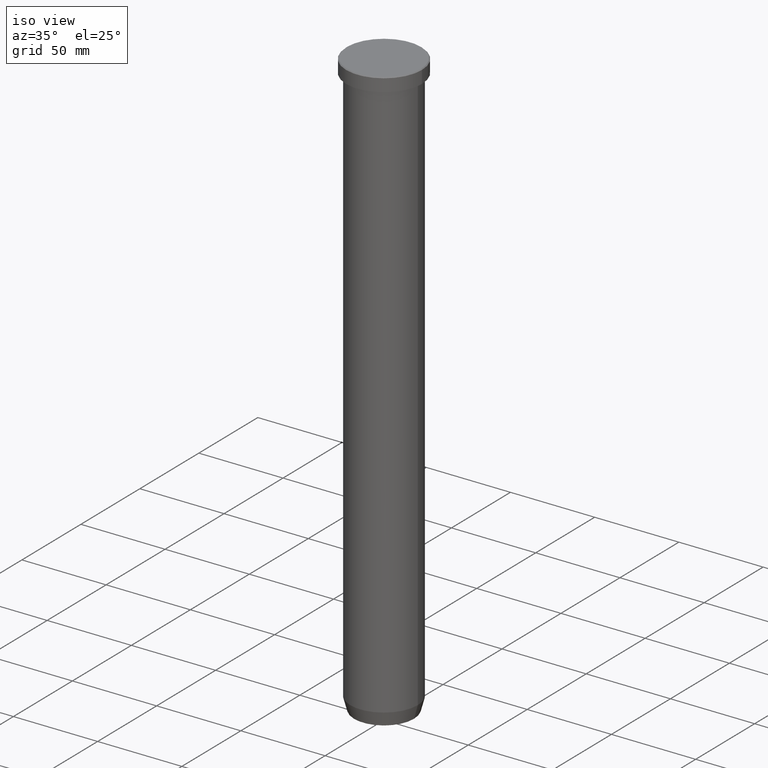
[diagram: clean part render]
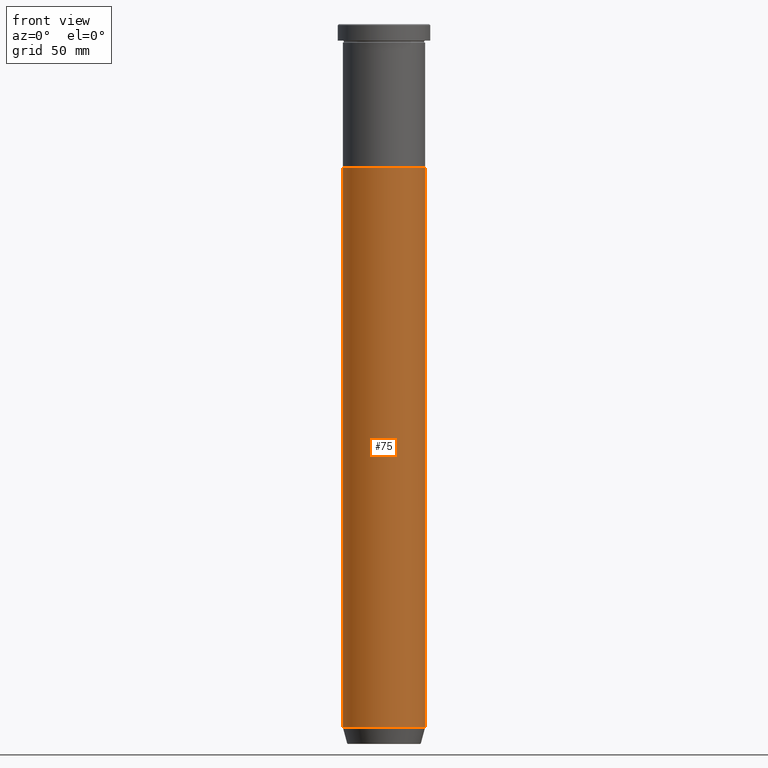
[diagram: tour spotlight — one face highlighted and labeled with its STEP entity id]
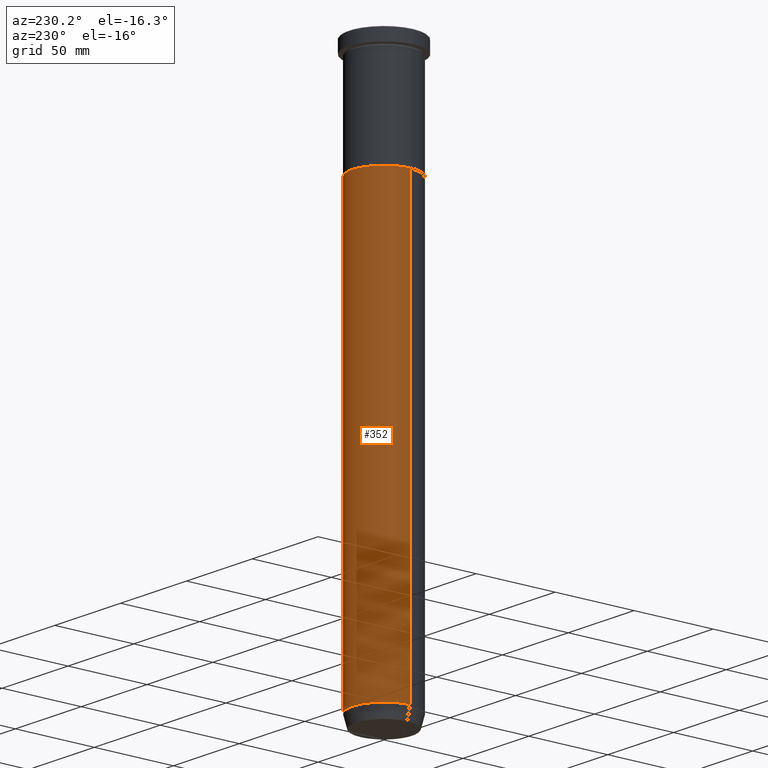
[diagram: tour spotlight — one face highlighted and labeled with its STEP entity id]
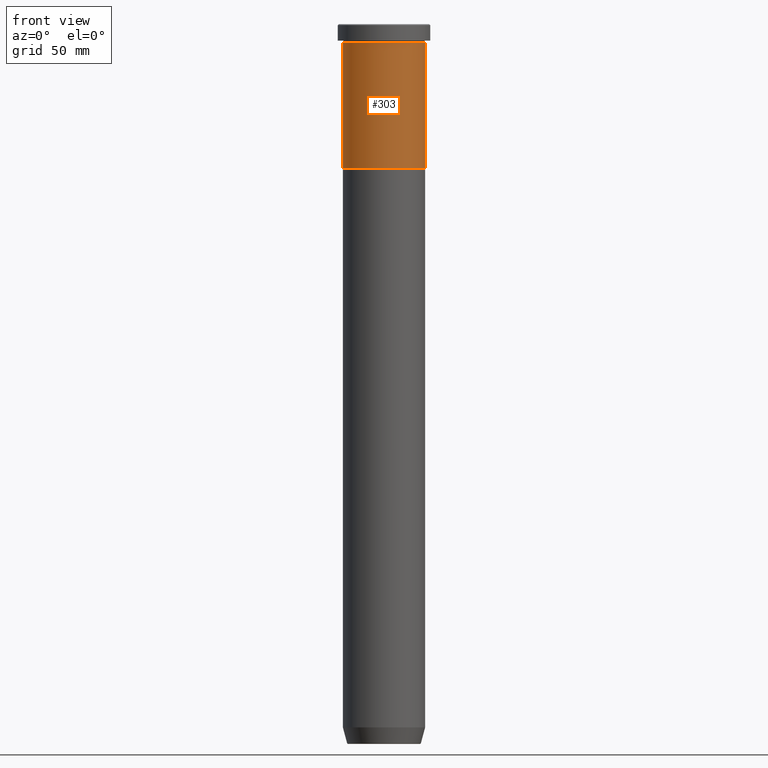
[diagram: tour spotlight — one face highlighted and labeled with its STEP entity id]
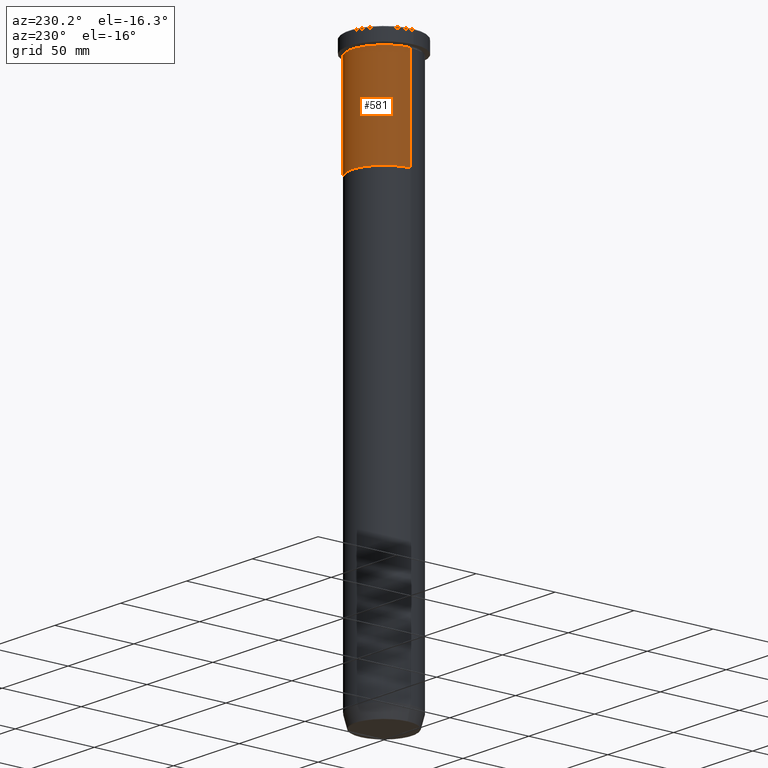
[diagram: tour spotlight — one face highlighted and labeled with its STEP entity id]
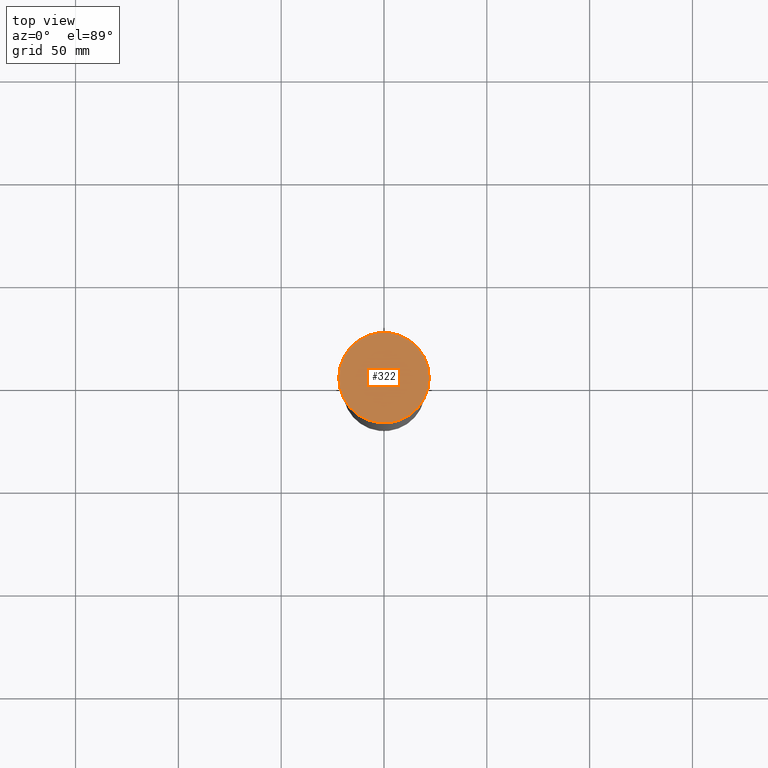
[diagram: tour spotlight — one face highlighted and labeled with its STEP entity id]
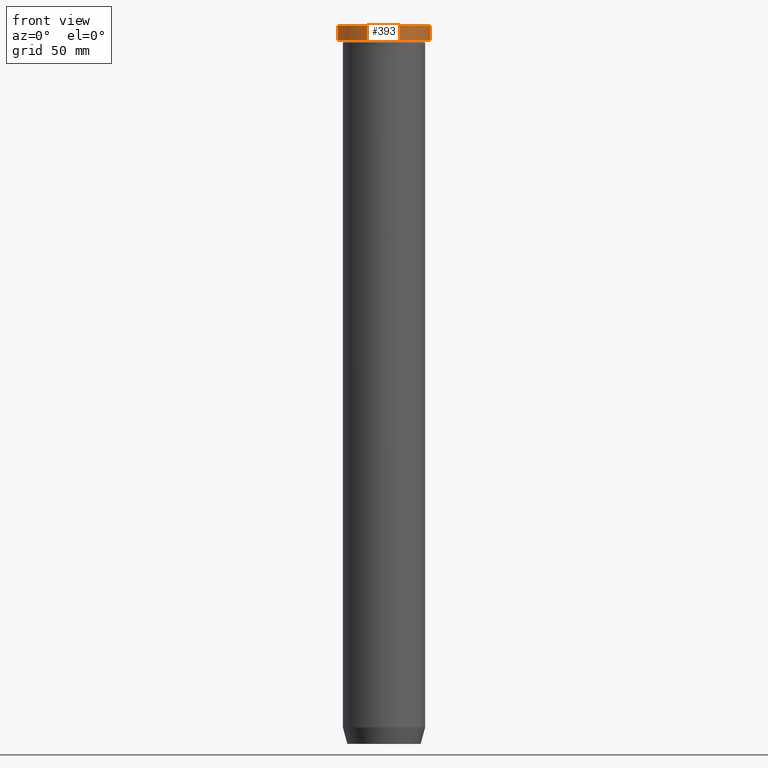
[diagram: tour spotlight — one face highlighted and labeled with its STEP entity id]
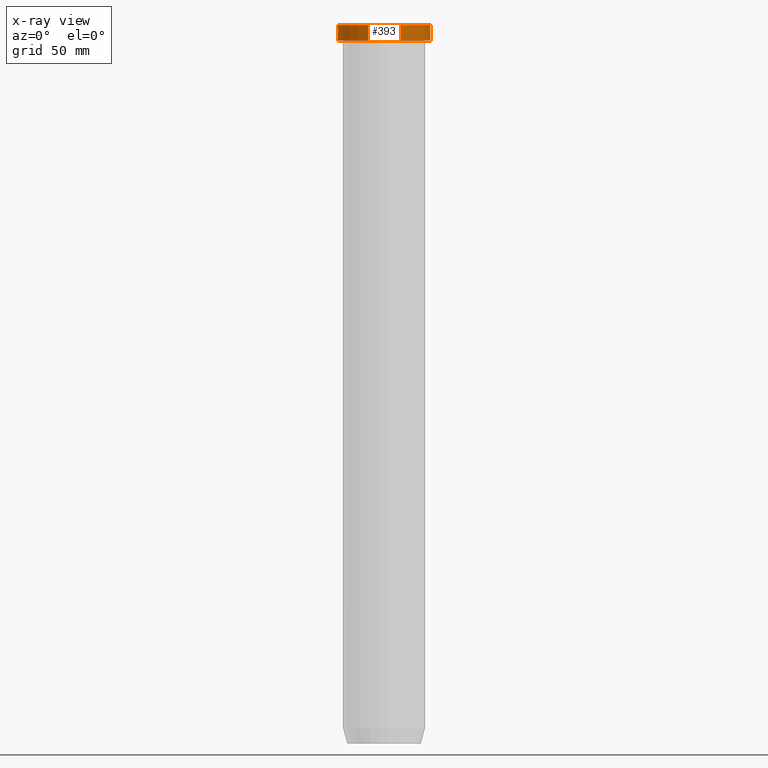
[diagram: x-ray of the same camera — body ghosted, this tour face saturated]
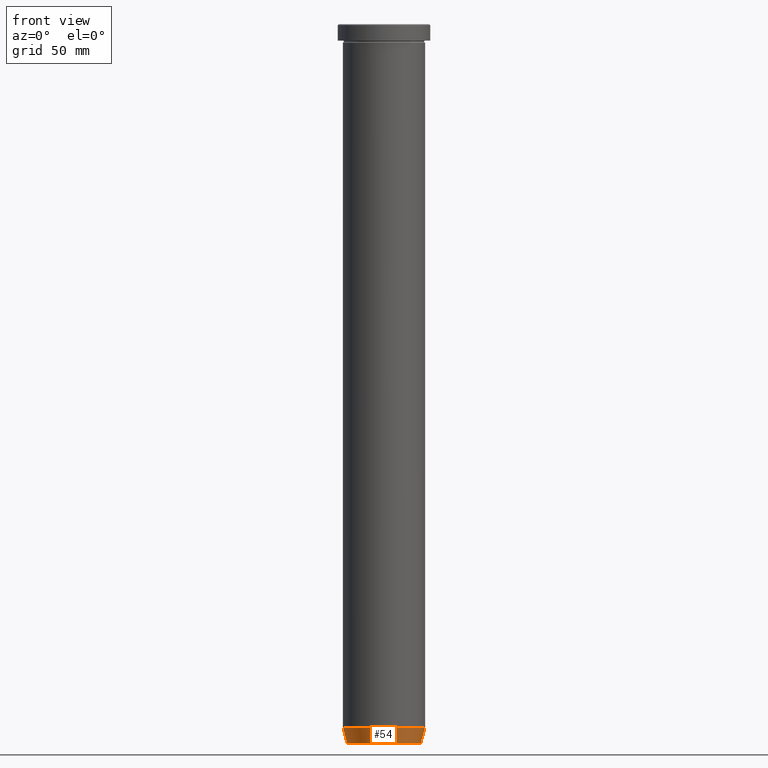
[diagram: tour spotlight — one face highlighted and labeled with its STEP entity id]
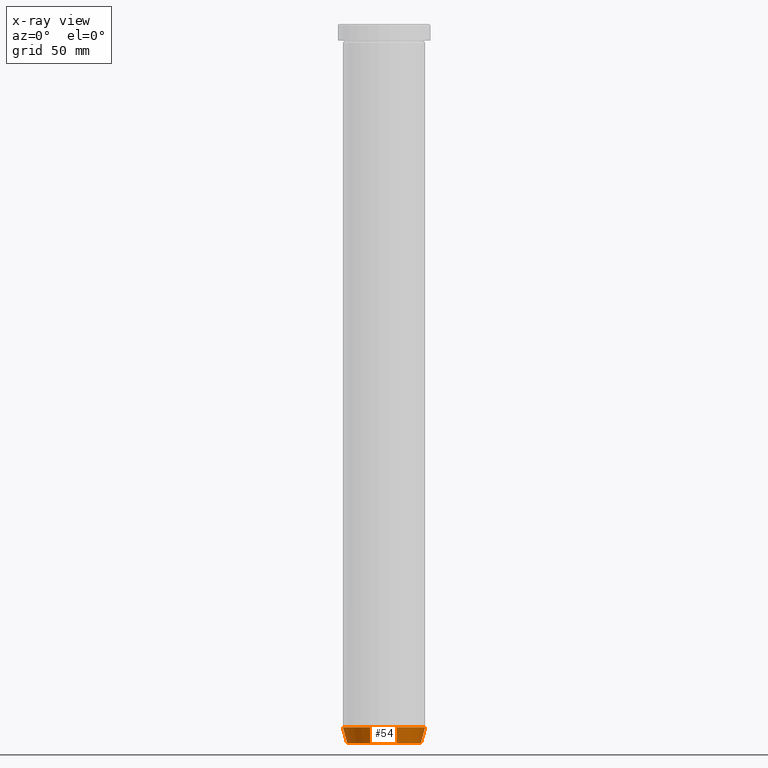
[diagram: x-ray of the same camera — body ghosted, this tour face saturated]
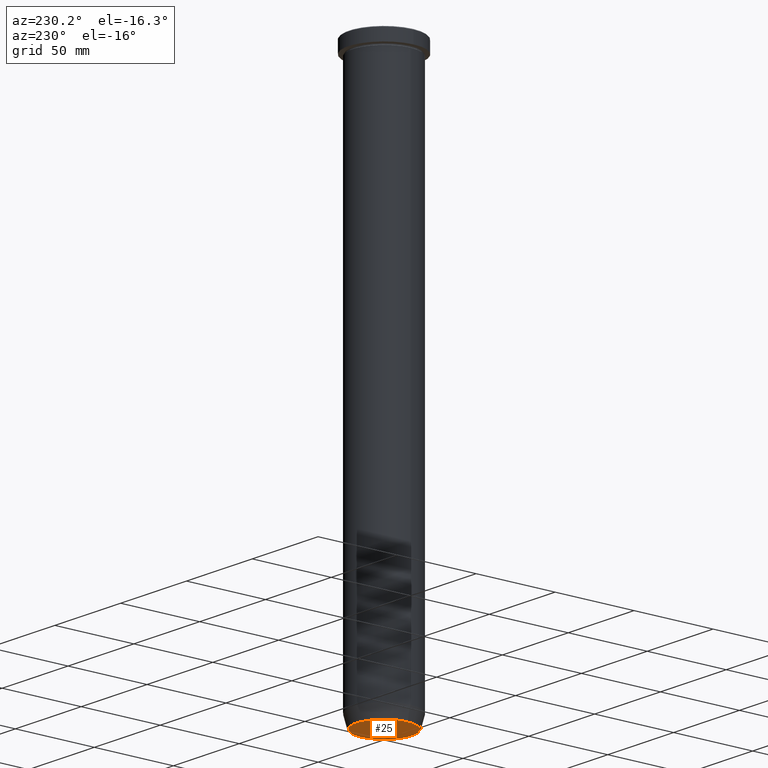
[diagram: tour spotlight — one face highlighted and labeled with its STEP entity id]
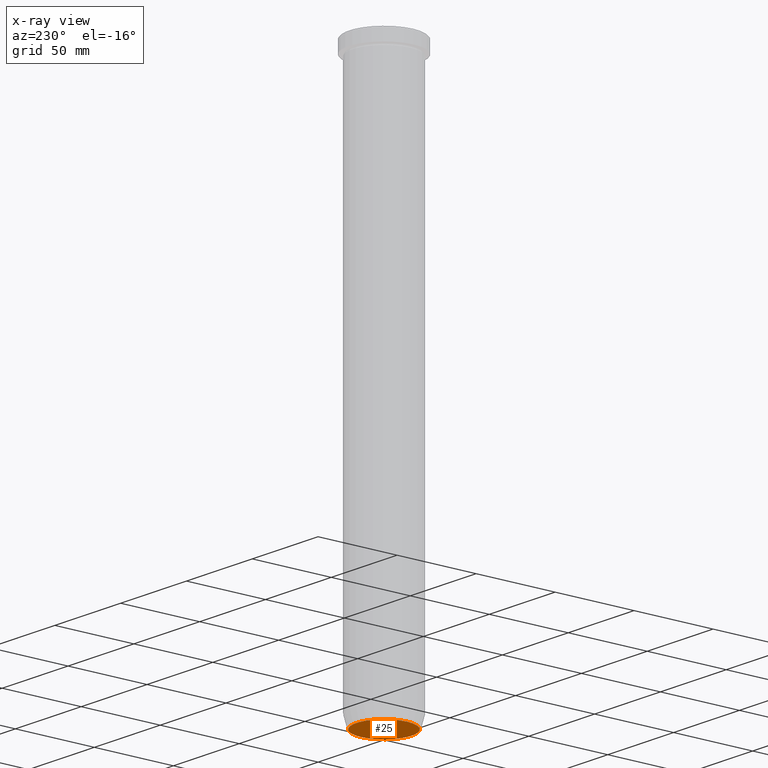
[diagram: x-ray of the same camera — body ghosted, this tour face saturated]
A machine part: a face-by-face anatomy tour. The part has 21 B-rep faces; the first image is the clean iso view, then the 8 largest visible faces are spotlighted one at a time (largest first), each with its STEP entity span.

Face 1 — front view, entity #75. In plain terms, the highlighted cylindrical surface (partial cylindrical patch) has radius 20 mm, axis along (-0, -0, 1).
Definition (entity closure, byte-faithful):
#12 = DIRECTION ( 'NONE',  ( -0.000000000000000000, -0.000000000000000000, 1.000000000000000000 ) ) ;
#27 = CARTESIAN_POINT ( 'NONE',  ( 20.00000000000000355, 0.000000000000000000, 0.000000000000000000 ) ) ;
#74 = CARTESIAN_POINT ( 'NONE',  ( -20.00000000000000355, 2.449293598294706907E-15, 0.000000000000000000 ) ) ;
#75 = ADVANCED_FACE ( 'NONE', ( #330 ), #558, .T. ) ;
#76 = CARTESIAN_POINT ( 'NONE',  ( 20.00000000000000000, 0.000000000000000000, -70.00000000000000000 ) ) ;
#80 = CIRCLE ( 'NONE', #209, 20.00000000000000000 ) ;
#89 = CARTESIAN_POINT ( 'NONE',  ( 0.000000000000000000, 0.000000000000000000, -342.0000000000000000 ) ) ;
#115 = DIRECTION ( 'NONE',  ( -0.000000000000000000, -0.000000000000000000, 1.000000000000000000 ) ) ;
#184 = EDGE_CURVE ( 'NONE', #221, #420, #597, .T. ) ;
#194 = DIRECTION ( 'NONE',  ( 1.000000000000000000, 0.000000000000000000, 0.000000000000000000 ) ) ;
#209 = AXIS2_PLACEMENT_3D ( 'NONE', #253, #435, #385 ) ;
#218 = EDGE_LOOP ( 'NONE', ( #535, #246, #573, #255 ) ) ;
#221 = VERTEX_POINT ( 'NONE', #580 ) ;
#232 = CARTESIAN_POINT ( 'NONE',  ( -20.00000000000000000, 2.449293598294706513E-15, -70.00000000000000000 ) ) ;
#239 = DIRECTION ( 'NONE',  ( -0.000000000000000000, -0.000000000000000000, 1.000000000000000000 ) ) ;
#246 = ORIENTED_EDGE ( 'NONE', *, *, #568, .T. ) ;
#253 = CARTESIAN_POINT ( 'NONE',  ( 0.000000000000000000, 0.000000000000000000, -70.00000000000000000 ) ) ;
#255 = ORIENTED_EDGE ( 'NONE', *, *, #348, .F. ) ;
#287 = CARTESIAN_POINT ( 'NONE',  ( -20.00000000000000355, 2.449293598294706907E-15, -342.0000000000000000 ) ) ;
#309 = CIRCLE ( 'NONE', #456, 20.00000000000000355 ) ;
#330 = FACE_OUTER_BOUND ( 'NONE', #218, .T. ) ;
#348 = EDGE_CURVE ( 'NONE', #548, #420, #80, .T. ) ;
#385 = DIRECTION ( 'NONE',  ( 1.000000000000000000, 0.000000000000000000, 0.000000000000000000 ) ) ;
#420 = VERTEX_POINT ( 'NONE', #76 ) ;
#423 = DIRECTION ( 'NONE',  ( 1.000000000000000000, 0.000000000000000000, 0.000000000000000000 ) ) ;
#426 = EDGE_CURVE ( 'NONE', #579, #548, #493, .T. ) ;
#435 = DIRECTION ( 'NONE',  ( -0.000000000000000000, -0.000000000000000000, 1.000000000000000000 ) ) ;
#456 = AXIS2_PLACEMENT_3D ( 'NONE', #89, #239, #194 ) ;
#460 = CARTESIAN_POINT ( 'NONE',  ( 0.000000000000000000, 0.000000000000000000, 0.000000000000000000 ) ) ;
#489 = VECTOR ( 'NONE', #570, 1000.000000000000000 ) ;
#493 = LINE ( 'NONE', #74, #578 ) ;
#535 = ORIENTED_EDGE ( 'NONE', *, *, #426, .F. ) ;
#548 = VERTEX_POINT ( 'NONE', #232 ) ;
#554 = AXIS2_PLACEMENT_3D ( 'NONE', #460, #12, #423 ) ;
#558 = CYLINDRICAL_SURFACE ( 'NONE', #554, 20.00000000000000355 ) ;
#568 = EDGE_CURVE ( 'NONE', #579, #221, #309, .T. ) ;
#570 = DIRECTION ( 'NONE',  ( -0.000000000000000000, -0.000000000000000000, 1.000000000000000000 ) ) ;
#573 = ORIENTED_EDGE ( 'NONE', *, *, #184, .T. ) ;
#578 = VECTOR ( 'NONE', #115, 1000.000000000000000 ) ;
#579 = VERTEX_POINT ( 'NONE', #287 ) ;
#580 = CARTESIAN_POINT ( 'NONE',  ( 20.00000000000000355, 0.000000000000000000, -342.0000000000000000 ) ) ;
#597 = LINE ( 'NONE', #27, #489 ) ;

Face 2 — auxiliary view, entity #352. In plain terms, the highlighted cylindrical surface (partial cylindrical patch) has radius 20 mm, axis along (-0, -0, 1).
Definition (entity closure, byte-faithful):
#13 = AXIS2_PLACEMENT_3D ( 'NONE', #409, #333, #94 ) ;
#27 = CARTESIAN_POINT ( 'NONE',  ( 20.00000000000000355, 0.000000000000000000, 0.000000000000000000 ) ) ;
#35 = AXIS2_PLACEMENT_3D ( 'NONE', #36, #310, #318 ) ;
#36 = CARTESIAN_POINT ( 'NONE',  ( 0.000000000000000000, 0.000000000000000000, -342.0000000000000000 ) ) ;
#45 = EDGE_CURVE ( 'NONE', #420, #548, #532, .T. ) ;
#66 = ORIENTED_EDGE ( 'NONE', *, *, #45, .F. ) ;
#74 = CARTESIAN_POINT ( 'NONE',  ( -20.00000000000000355, 2.449293598294706907E-15, 0.000000000000000000 ) ) ;
#76 = CARTESIAN_POINT ( 'NONE',  ( 20.00000000000000000, 0.000000000000000000, -70.00000000000000000 ) ) ;
#83 = DIRECTION ( 'NONE',  ( 1.000000000000000000, 0.000000000000000000, 0.000000000000000000 ) ) ;
#94 = DIRECTION ( 'NONE',  ( 1.000000000000000000, 0.000000000000000000, 0.000000000000000000 ) ) ;
#115 = DIRECTION ( 'NONE',  ( -0.000000000000000000, -0.000000000000000000, 1.000000000000000000 ) ) ;
#173 = CYLINDRICAL_SURFACE ( 'NONE', #217, 20.00000000000000355 ) ;
#184 = EDGE_CURVE ( 'NONE', #221, #420, #597, .T. ) ;
#217 = AXIS2_PLACEMENT_3D ( 'NONE', #354, #488, #83 ) ;
#221 = VERTEX_POINT ( 'NONE', #580 ) ;
#232 = CARTESIAN_POINT ( 'NONE',  ( -20.00000000000000000, 2.449293598294706513E-15, -70.00000000000000000 ) ) ;
#287 = CARTESIAN_POINT ( 'NONE',  ( -20.00000000000000355, 2.449293598294706907E-15, -342.0000000000000000 ) ) ;
#310 = DIRECTION ( 'NONE',  ( -0.000000000000000000, -0.000000000000000000, 1.000000000000000000 ) ) ;
#318 = DIRECTION ( 'NONE',  ( 1.000000000000000000, 0.000000000000000000, 0.000000000000000000 ) ) ;
#333 = DIRECTION ( 'NONE',  ( -0.000000000000000000, -0.000000000000000000, 1.000000000000000000 ) ) ;
#334 = ORIENTED_EDGE ( 'NONE', *, *, #426, .T. ) ;
#352 = ADVANCED_FACE ( 'NONE', ( #576 ), #173, .T. ) ;
#354 = CARTESIAN_POINT ( 'NONE',  ( 0.000000000000000000, 0.000000000000000000, 0.000000000000000000 ) ) ;
#402 = EDGE_CURVE ( 'NONE', #221, #579, #584, .T. ) ;
#409 = CARTESIAN_POINT ( 'NONE',  ( 0.000000000000000000, 0.000000000000000000, -70.00000000000000000 ) ) ;
#420 = VERTEX_POINT ( 'NONE', #76 ) ;
#426 = EDGE_CURVE ( 'NONE', #579, #548, #493, .T. ) ;
#434 = ORIENTED_EDGE ( 'NONE', *, *, #184, .F. ) ;
#439 = ORIENTED_EDGE ( 'NONE', *, *, #402, .T. ) ;
#488 = DIRECTION ( 'NONE',  ( -0.000000000000000000, -0.000000000000000000, 1.000000000000000000 ) ) ;
#489 = VECTOR ( 'NONE', #570, 1000.000000000000000 ) ;
#493 = LINE ( 'NONE', #74, #578 ) ;
#532 = CIRCLE ( 'NONE', #13, 20.00000000000000000 ) ;
#548 = VERTEX_POINT ( 'NONE', #232 ) ;
#570 = DIRECTION ( 'NONE',  ( -0.000000000000000000, -0.000000000000000000, 1.000000000000000000 ) ) ;
#574 = EDGE_LOOP ( 'NONE', ( #439, #334, #66, #434 ) ) ;
#576 = FACE_OUTER_BOUND ( 'NONE', #574, .T. ) ;
#578 = VECTOR ( 'NONE', #115, 1000.000000000000000 ) ;
#579 = VERTEX_POINT ( 'NONE', #287 ) ;
#580 = CARTESIAN_POINT ( 'NONE',  ( 20.00000000000000355, 0.000000000000000000, -342.0000000000000000 ) ) ;
#584 = CIRCLE ( 'NONE', #35, 20.00000000000000355 ) ;
#597 = LINE ( 'NONE', #27, #489 ) ;

Face 3 — front view, entity #303. In plain terms, the highlighted cylindrical surface (partial cylindrical patch) has radius 20 mm, axis along (-0, -0, 1).
Definition (entity closure, byte-faithful):
#23 = CARTESIAN_POINT ( 'NONE',  ( 0.000000000000000000, 0.000000000000000000, 0.000000000000000000 ) ) ;
#49 = CIRCLE ( 'NONE', #512, 20.00000000000000000 ) ;
#56 = DIRECTION ( 'NONE',  ( -0.000000000000000000, -0.000000000000000000, 1.000000000000000000 ) ) ;
#60 = ORIENTED_EDGE ( 'NONE', *, *, #542, .F. ) ;
#67 = DIRECTION ( 'NONE',  ( -0.000000000000000000, -0.000000000000000000, 1.000000000000000000 ) ) ;
#84 = EDGE_CURVE ( 'NONE', #147, #99, #188, .T. ) ;
#87 = VECTOR ( 'NONE', #477, 1000.000000000000000 ) ;
#90 = VECTOR ( 'NONE', #421, 1000.000000000000000 ) ;
#99 = VERTEX_POINT ( 'NONE', #195 ) ;
#131 = EDGE_LOOP ( 'NONE', ( #60, #299, #497, #466 ) ) ;
#147 = VERTEX_POINT ( 'NONE', #273 ) ;
#157 = LINE ( 'NONE', #343, #87 ) ;
#188 = CIRCLE ( 'NONE', #566, 20.00000000000000000 ) ;
#195 = CARTESIAN_POINT ( 'NONE',  ( 20.00000000000000000, 0.000000000000000000, -70.00000000000000000 ) ) ;
#220 = DIRECTION ( 'NONE',  ( 1.000000000000000000, 0.000000000000000000, 0.000000000000000000 ) ) ;
#233 = DIRECTION ( 'NONE',  ( 1.000000000000000000, 0.000000000000000000, 0.000000000000000000 ) ) ;
#270 = CARTESIAN_POINT ( 'NONE',  ( -20.00000000000000000, 2.449293598294706513E-15, 0.000000000000000000 ) ) ;
#273 = CARTESIAN_POINT ( 'NONE',  ( -20.00000000000000000, 2.449293598294706513E-15, -70.00000000000000000 ) ) ;
#292 = DIRECTION ( 'NONE',  ( 1.000000000000000000, 0.000000000000000000, 0.000000000000000000 ) ) ;
#299 = ORIENTED_EDGE ( 'NONE', *, *, #84, .T. ) ;
#303 = ADVANCED_FACE ( 'NONE', ( #514 ), #437, .T. ) ;
#327 = CARTESIAN_POINT ( 'NONE',  ( 0.000000000000000000, 0.000000000000000000, -70.00000000000000000 ) ) ;
#329 = CARTESIAN_POINT ( 'NONE',  ( 20.00000000000000000, 0.000000000000000000, -8.999999999999998224 ) ) ;
#332 = CARTESIAN_POINT ( 'NONE',  ( -20.00000000000000000, 2.449293598294706513E-15, -8.999999999999998224 ) ) ;
#338 = EDGE_CURVE ( 'NONE', #99, #547, #157, .T. ) ;
#343 = CARTESIAN_POINT ( 'NONE',  ( 20.00000000000000000, 0.000000000000000000, 0.000000000000000000 ) ) ;
#360 = LINE ( 'NONE', #270, #90 ) ;
#421 = DIRECTION ( 'NONE',  ( -0.000000000000000000, -0.000000000000000000, 1.000000000000000000 ) ) ;
#433 = EDGE_CURVE ( 'NONE', #539, #547, #49, .T. ) ;
#437 = CYLINDRICAL_SURFACE ( 'NONE', #590, 20.00000000000000000 ) ;
#443 = DIRECTION ( 'NONE',  ( -0.000000000000000000, -0.000000000000000000, 1.000000000000000000 ) ) ;
#452 = CARTESIAN_POINT ( 'NONE',  ( 0.000000000000000000, 0.000000000000000000, -8.999999999999998224 ) ) ;
#466 = ORIENTED_EDGE ( 'NONE', *, *, #433, .F. ) ;
#477 = DIRECTION ( 'NONE',  ( -0.000000000000000000, -0.000000000000000000, 1.000000000000000000 ) ) ;
#497 = ORIENTED_EDGE ( 'NONE', *, *, #338, .T. ) ;
#512 = AXIS2_PLACEMENT_3D ( 'NONE', #452, #443, #220 ) ;
#514 = FACE_OUTER_BOUND ( 'NONE', #131, .T. ) ;
#539 = VERTEX_POINT ( 'NONE', #332 ) ;
#542 = EDGE_CURVE ( 'NONE', #147, #539, #360, .T. ) ;
#547 = VERTEX_POINT ( 'NONE', #329 ) ;
#566 = AXIS2_PLACEMENT_3D ( 'NONE', #327, #56, #233 ) ;
#590 = AXIS2_PLACEMENT_3D ( 'NONE', #23, #67, #292 ) ;

Face 4 — auxiliary view, entity #581. In plain terms, the highlighted cylindrical surface (partial cylindrical patch) has radius 20 mm, axis along (-0, -0, 1).
Definition (entity closure, byte-faithful):
#3 = ORIENTED_EDGE ( 'NONE', *, *, #338, .F. ) ;
#37 = CIRCLE ( 'NONE', #127, 20.00000000000000000 ) ;
#41 = ORIENTED_EDGE ( 'NONE', *, *, #491, .T. ) ;
#47 = AXIS2_PLACEMENT_3D ( 'NONE', #598, #549, #415 ) ;
#87 = VECTOR ( 'NONE', #477, 1000.000000000000000 ) ;
#90 = VECTOR ( 'NONE', #421, 1000.000000000000000 ) ;
#99 = VERTEX_POINT ( 'NONE', #195 ) ;
#127 = AXIS2_PLACEMENT_3D ( 'NONE', #268, #483, #169 ) ;
#147 = VERTEX_POINT ( 'NONE', #273 ) ;
#157 = LINE ( 'NONE', #343, #87 ) ;
#169 = DIRECTION ( 'NONE',  ( 1.000000000000000000, 0.000000000000000000, 0.000000000000000000 ) ) ;
#186 = EDGE_LOOP ( 'NONE', ( #41, #503, #357, #3 ) ) ;
#195 = CARTESIAN_POINT ( 'NONE',  ( 20.00000000000000000, 0.000000000000000000, -70.00000000000000000 ) ) ;
#196 = EDGE_CURVE ( 'NONE', #547, #539, #454, .T. ) ;
#207 = DIRECTION ( 'NONE',  ( 1.000000000000000000, 0.000000000000000000, 0.000000000000000000 ) ) ;
#211 = CARTESIAN_POINT ( 'NONE',  ( 0.000000000000000000, 0.000000000000000000, -8.999999999999998224 ) ) ;
#237 = AXIS2_PLACEMENT_3D ( 'NONE', #211, #472, #207 ) ;
#268 = CARTESIAN_POINT ( 'NONE',  ( 0.000000000000000000, 0.000000000000000000, -70.00000000000000000 ) ) ;
#270 = CARTESIAN_POINT ( 'NONE',  ( -20.00000000000000000, 2.449293598294706513E-15, 0.000000000000000000 ) ) ;
#273 = CARTESIAN_POINT ( 'NONE',  ( -20.00000000000000000, 2.449293598294706513E-15, -70.00000000000000000 ) ) ;
#280 = FACE_OUTER_BOUND ( 'NONE', #186, .T. ) ;
#325 = CYLINDRICAL_SURFACE ( 'NONE', #47, 20.00000000000000000 ) ;
#329 = CARTESIAN_POINT ( 'NONE',  ( 20.00000000000000000, 0.000000000000000000, -8.999999999999998224 ) ) ;
#332 = CARTESIAN_POINT ( 'NONE',  ( -20.00000000000000000, 2.449293598294706513E-15, -8.999999999999998224 ) ) ;
#338 = EDGE_CURVE ( 'NONE', #99, #547, #157, .T. ) ;
#343 = CARTESIAN_POINT ( 'NONE',  ( 20.00000000000000000, 0.000000000000000000, 0.000000000000000000 ) ) ;
#357 = ORIENTED_EDGE ( 'NONE', *, *, #196, .F. ) ;
#360 = LINE ( 'NONE', #270, #90 ) ;
#415 = DIRECTION ( 'NONE',  ( 1.000000000000000000, 0.000000000000000000, 0.000000000000000000 ) ) ;
#421 = DIRECTION ( 'NONE',  ( -0.000000000000000000, -0.000000000000000000, 1.000000000000000000 ) ) ;
#454 = CIRCLE ( 'NONE', #237, 20.00000000000000000 ) ;
#472 = DIRECTION ( 'NONE',  ( -0.000000000000000000, -0.000000000000000000, 1.000000000000000000 ) ) ;
#477 = DIRECTION ( 'NONE',  ( -0.000000000000000000, -0.000000000000000000, 1.000000000000000000 ) ) ;
#483 = DIRECTION ( 'NONE',  ( -0.000000000000000000, -0.000000000000000000, 1.000000000000000000 ) ) ;
#491 = EDGE_CURVE ( 'NONE', #99, #147, #37, .T. ) ;
#503 = ORIENTED_EDGE ( 'NONE', *, *, #542, .T. ) ;
#539 = VERTEX_POINT ( 'NONE', #332 ) ;
#542 = EDGE_CURVE ( 'NONE', #147, #539, #360, .T. ) ;
#547 = VERTEX_POINT ( 'NONE', #329 ) ;
#549 = DIRECTION ( 'NONE',  ( -0.000000000000000000, -0.000000000000000000, 1.000000000000000000 ) ) ;
#581 = ADVANCED_FACE ( 'NONE', ( #280 ), #325, .T. ) ;
#598 = CARTESIAN_POINT ( 'NONE',  ( 0.000000000000000000, 0.000000000000000000, 0.000000000000000000 ) ) ;

Face 5 — top view, entity #322. In plain terms, the highlighted planar face has unit normal (0, -0, 1).
Definition (entity closure, byte-faithful):
#48 = CARTESIAN_POINT ( 'NONE',  ( 21.99999999999997868, 2.724839128102859413E-15, 0.000000000000000000 ) ) ;
#62 = CARTESIAN_POINT ( 'NONE',  ( 0.000000000000000000, 0.000000000000000000, 0.000000000000000000 ) ) ;
#65 = FACE_OUTER_BOUND ( 'NONE', #181, .T. ) ;
#137 = DIRECTION ( 'NONE',  ( 1.000000000000000000, 0.000000000000000000, 0.000000000000000000 ) ) ;
#144 = CARTESIAN_POINT ( 'NONE',  ( 0.000000000000000000, 0.000000000000000000, 0.000000000000000000 ) ) ;
#158 = EDGE_CURVE ( 'NONE', #178, #364, #336, .T. ) ;
#162 = ORIENTED_EDGE ( 'NONE', *, *, #168, .T. ) ;
#167 = CIRCLE ( 'NONE', #438, 21.99999999999997868 ) ;
#168 = EDGE_CURVE ( 'NONE', #364, #178, #167, .T. ) ;
#178 = VERTEX_POINT ( 'NONE', #48 ) ;
#179 = CARTESIAN_POINT ( 'NONE',  ( -21.99999999999997868, 0.000000000000000000, 0.000000000000000000 ) ) ;
#181 = EDGE_LOOP ( 'NONE', ( #162, #361 ) ) ;
#250 = DIRECTION ( 'NONE',  ( 0.000000000000000000, -0.000000000000000000, 1.000000000000000000 ) ) ;
#300 = DIRECTION ( 'NONE',  ( 1.000000000000000000, 0.000000000000000000, 0.000000000000000000 ) ) ;
#317 = AXIS2_PLACEMENT_3D ( 'NONE', #62, #250, #300 ) ;
#322 = ADVANCED_FACE ( 'NONE', ( #65 ), #345, .T. ) ;
#336 = CIRCLE ( 'NONE', #427, 21.99999999999997868 ) ;
#345 = PLANE ( 'NONE',  #317 ) ;
#361 = ORIENTED_EDGE ( 'NONE', *, *, #158, .T. ) ;
#364 = VERTEX_POINT ( 'NONE', #179 ) ;
#370 = CARTESIAN_POINT ( 'NONE',  ( 0.000000000000000000, 0.000000000000000000, 0.000000000000000000 ) ) ;
#427 = AXIS2_PLACEMENT_3D ( 'NONE', #370, #556, #137 ) ;
#438 = AXIS2_PLACEMENT_3D ( 'NONE', #144, #462, #567 ) ;
#462 = DIRECTION ( 'NONE',  ( -0.000000000000000000, -0.000000000000000000, 1.000000000000000000 ) ) ;
#556 = DIRECTION ( 'NONE',  ( -0.000000000000000000, -0.000000000000000000, 1.000000000000000000 ) ) ;
#567 = DIRECTION ( 'NONE',  ( 1.000000000000000000, 0.000000000000000000, 0.000000000000000000 ) ) ;

Face 6 — front view, entity #393. An x-ray twin of the same camera follows (body ghosted, this face saturated) — the face is partly hidden behind the body. In plain terms, the highlighted cylindrical surface (partial cylindrical patch) has radius 22.5 mm, axis along (-0, -0, 1).
Definition (entity closure, byte-faithful):
#18 = DIRECTION ( 'NONE',  ( -0.000000000000000000, -0.000000000000000000, 1.000000000000000000 ) ) ;
#63 = VERTEX_POINT ( 'NONE', #281 ) ;
#64 = EDGE_LOOP ( 'NONE', ( #306, #516, #213, #96 ) ) ;
#73 = VERTEX_POINT ( 'NONE', #335 ) ;
#96 = ORIENTED_EDGE ( 'NONE', *, *, #518, .T. ) ;
#97 = CARTESIAN_POINT ( 'NONE',  ( 22.50000000000000000, 0.000000000000000000, -7.999999999999998224 ) ) ;
#102 = DIRECTION ( 'NONE',  ( -0.000000000000000000, -0.000000000000000000, 1.000000000000000000 ) ) ;
#104 = AXIS2_PLACEMENT_3D ( 'NONE', #304, #18, #342 ) ;
#122 = DIRECTION ( 'NONE',  ( 1.000000000000000000, 0.000000000000000000, 0.000000000000000000 ) ) ;
#134 = AXIS2_PLACEMENT_3D ( 'NONE', #543, #447, #122 ) ;
#151 = VERTEX_POINT ( 'NONE', #97 ) ;
#152 = CIRCLE ( 'NONE', #353, 22.50000000000000000 ) ;
#213 = ORIENTED_EDGE ( 'NONE', *, *, #274, .T. ) ;
#256 = CARTESIAN_POINT ( 'NONE',  ( 22.50000000000000000, 0.000000000000000000, 0.000000000000000000 ) ) ;
#258 = LINE ( 'NONE', #256, #519 ) ;
#261 = DIRECTION ( 'NONE',  ( -0.000000000000000000, -0.000000000000000000, 1.000000000000000000 ) ) ;
#262 = EDGE_CURVE ( 'NONE', #63, #151, #473, .T. ) ;
#264 = CYLINDRICAL_SURFACE ( 'NONE', #134, 22.50000000000000000 ) ;
#266 = CARTESIAN_POINT ( 'NONE',  ( -22.50000000000000000, 2.755455298081544778E-15, 0.000000000000000000 ) ) ;
#274 = EDGE_CURVE ( 'NONE', #151, #73, #258, .T. ) ;
#277 = DIRECTION ( 'NONE',  ( 0.000000000000000000, 0.000000000000000000, -1.000000000000000000 ) ) ;
#281 = CARTESIAN_POINT ( 'NONE',  ( -22.50000000000000000, 2.755455298081544778E-15, -7.999999999999998224 ) ) ;
#297 = VECTOR ( 'NONE', #261, 1000.000000000000000 ) ;
#304 = CARTESIAN_POINT ( 'NONE',  ( 0.000000000000000000, 0.000000000000000000, -7.999999999999998224 ) ) ;
#306 = ORIENTED_EDGE ( 'NONE', *, *, #359, .F. ) ;
#308 = CARTESIAN_POINT ( 'NONE',  ( 0.000000000000000000, 0.000000000000000000, -0.5000000000000213163 ) ) ;
#335 = CARTESIAN_POINT ( 'NONE',  ( 22.50000000000000000, 0.000000000000000000, -0.5000000000000213163 ) ) ;
#342 = DIRECTION ( 'NONE',  ( 1.000000000000000000, 0.000000000000000000, 0.000000000000000000 ) ) ;
#353 = AXIS2_PLACEMENT_3D ( 'NONE', #308, #277, #463 ) ;
#359 = EDGE_CURVE ( 'NONE', #63, #362, #405, .T. ) ;
#362 = VERTEX_POINT ( 'NONE', #531 ) ;
#393 = ADVANCED_FACE ( 'NONE', ( #583 ), #264, .T. ) ;
#405 = LINE ( 'NONE', #266, #297 ) ;
#447 = DIRECTION ( 'NONE',  ( -0.000000000000000000, -0.000000000000000000, 1.000000000000000000 ) ) ;
#463 = DIRECTION ( 'NONE',  ( 1.000000000000000000, 0.000000000000000000, 0.000000000000000000 ) ) ;
#473 = CIRCLE ( 'NONE', #104, 22.50000000000000000 ) ;
#516 = ORIENTED_EDGE ( 'NONE', *, *, #262, .T. ) ;
#518 = EDGE_CURVE ( 'NONE', #73, #362, #152, .T. ) ;
#519 = VECTOR ( 'NONE', #102, 1000.000000000000000 ) ;
#531 = CARTESIAN_POINT ( 'NONE',  ( -22.50000000000000000, 2.755455298081544778E-15, -0.5000000000000213163 ) ) ;
#543 = CARTESIAN_POINT ( 'NONE',  ( 0.000000000000000000, 0.000000000000000000, 0.000000000000000000 ) ) ;
#583 = FACE_OUTER_BOUND ( 'NONE', #64, .T. ) ;

Face 7 — front view, entity #54. An x-ray twin of the same camera follows (body ghosted, this face saturated) — the face is partly hidden behind the body. In plain terms, the highlighted conical surface has half-angle 15 deg.
Definition (entity closure, byte-faithful):
#40 = DIRECTION ( 'NONE',  ( -0.000000000000000000, -0.000000000000000000, 1.000000000000000000 ) ) ;
#54 = ADVANCED_FACE ( 'NONE', ( #418 ), #296, .T. ) ;
#72 = CARTESIAN_POINT ( 'NONE',  ( 17.95570587970608045, 0.000000000000000000, -349.6294095225512706 ) ) ;
#78 = ORIENTED_EDGE ( 'NONE', *, *, #458, .T. ) ;
#89 = CARTESIAN_POINT ( 'NONE',  ( 0.000000000000000000, 0.000000000000000000, -342.0000000000000000 ) ) ;
#101 = ORIENTED_EDGE ( 'NONE', *, *, #568, .F. ) ;
#108 = VECTOR ( 'NONE', #506, 1000.000000000000114 ) ;
#143 = CARTESIAN_POINT ( 'NONE',  ( 17.85640646055101399, 0.000000000000000000, -350.0000000000000568 ) ) ;
#175 = CARTESIAN_POINT ( 'NONE',  ( 0.000000000000000000, 0.000000000000000000, -349.6294095225512706 ) ) ;
#187 = CARTESIAN_POINT ( 'NONE',  ( 0.000000000000000000, 0.000000000000000000, -350.0000000000000568 ) ) ;
#194 = DIRECTION ( 'NONE',  ( 1.000000000000000000, 0.000000000000000000, 0.000000000000000000 ) ) ;
#221 = VERTEX_POINT ( 'NONE', #580 ) ;
#239 = DIRECTION ( 'NONE',  ( -0.000000000000000000, -0.000000000000000000, 1.000000000000000000 ) ) ;
#265 = VERTEX_POINT ( 'NONE', #302 ) ;
#267 = VERTEX_POINT ( 'NONE', #72 ) ;
#287 = CARTESIAN_POINT ( 'NONE',  ( -20.00000000000000355, 2.449293598294706907E-15, -342.0000000000000000 ) ) ;
#293 = EDGE_CURVE ( 'NONE', #265, #579, #295, .T. ) ;
#295 = LINE ( 'NONE', #349, #305 ) ;
#296 = CONICAL_SURFACE ( 'NONE', #445, 17.85640646055101399, 0.2617993877991499629 ) ;
#298 = ORIENTED_EDGE ( 'NONE', *, *, #293, .F. ) ;
#302 = CARTESIAN_POINT ( 'NONE',  ( -17.95570587970608045, 2.324116685748021371E-15, -349.6294095225512706 ) ) ;
#305 = VECTOR ( 'NONE', #481, 1000.000000000000114 ) ;
#309 = CIRCLE ( 'NONE', #456, 20.00000000000000355 ) ;
#315 = EDGE_LOOP ( 'NONE', ( #298, #78, #550, #101 ) ) ;
#349 = CARTESIAN_POINT ( 'NONE',  ( -17.85640646055101399, 2.186779101618792051E-15, -350.0000000000000568 ) ) ;
#363 = DIRECTION ( 'NONE',  ( -0.000000000000000000, -0.000000000000000000, 1.000000000000000000 ) ) ;
#418 = FACE_OUTER_BOUND ( 'NONE', #315, .T. ) ;
#424 = LINE ( 'NONE', #143, #108 ) ;
#445 = AXIS2_PLACEMENT_3D ( 'NONE', #187, #363, #469 ) ;
#456 = AXIS2_PLACEMENT_3D ( 'NONE', #89, #239, #194 ) ;
#458 = EDGE_CURVE ( 'NONE', #265, #267, #538, .T. ) ;
#469 = DIRECTION ( 'NONE',  ( 1.000000000000000000, 0.000000000000000000, 0.000000000000000000 ) ) ;
#481 = DIRECTION ( 'NONE',  ( -0.2588190451025212391, 3.169619151431771721E-17, 0.9659258262890680902 ) ) ;
#500 = AXIS2_PLACEMENT_3D ( 'NONE', #175, #40, #537 ) ;
#506 = DIRECTION ( 'NONE',  ( 0.2588190451025212391, 0.000000000000000000, 0.9659258262890680902 ) ) ;
#537 = DIRECTION ( 'NONE',  ( -1.000000000000000000, 0.000000000000000000, 0.000000000000000000 ) ) ;
#538 = CIRCLE ( 'NONE', #500, 17.95570587970608045 ) ;
#550 = ORIENTED_EDGE ( 'NONE', *, *, #595, .T. ) ;
#568 = EDGE_CURVE ( 'NONE', #579, #221, #309, .T. ) ;
#579 = VERTEX_POINT ( 'NONE', #287 ) ;
#580 = CARTESIAN_POINT ( 'NONE',  ( 20.00000000000000355, 0.000000000000000000, -342.0000000000000000 ) ) ;
#595 = EDGE_CURVE ( 'NONE', #267, #221, #424, .T. ) ;

Face 8 — auxiliary view, entity #25. An x-ray twin of the same camera follows (body ghosted, this face saturated) — the face is partly hidden behind the body. In plain terms, the highlighted planar face has unit normal (0, -0, 1).
Definition (entity closure, byte-faithful):
#16 = CARTESIAN_POINT ( 'NONE',  ( 0.000000000000000000, 0.000000000000000000, -350.0000000000000568 ) ) ;
#25 = ADVANCED_FACE ( 'NONE', ( #522 ), #124, .F. ) ;
#57 = CIRCLE ( 'NONE', #464, 17.47274296656153680 ) ;
#81 = CARTESIAN_POINT ( 'NONE',  ( 17.47274296656153680, 0.000000000000000000, -350.0000000000000568 ) ) ;
#124 = PLANE ( 'NONE',  #201 ) ;
#139 = ORIENTED_EDGE ( 'NONE', *, *, #386, .T. ) ;
#146 = AXIS2_PLACEMENT_3D ( 'NONE', #214, #394, #314 ) ;
#176 = CARTESIAN_POINT ( 'NONE',  ( 0.000000000000000000, 3.673940397442060124E-14, -350.0000000000000568 ) ) ;
#183 = DIRECTION ( 'NONE',  ( 0.000000000000000000, -0.000000000000000000, 1.000000000000000000 ) ) ;
#201 = AXIS2_PLACEMENT_3D ( 'NONE', #176, #183, #448 ) ;
#204 = DIRECTION ( 'NONE',  ( 1.000000000000000000, 0.000000000000000000, 0.000000000000000000 ) ) ;
#214 = CARTESIAN_POINT ( 'NONE',  ( 0.000000000000000000, 0.000000000000000000, -350.0000000000000568 ) ) ;
#247 = CIRCLE ( 'NONE', #146, 17.47274296656153680 ) ;
#283 = ORIENTED_EDGE ( 'NONE', *, *, #331, .T. ) ;
#314 = DIRECTION ( 'NONE',  ( 1.000000000000000000, 0.000000000000000000, 0.000000000000000000 ) ) ;
#323 = VERTEX_POINT ( 'NONE', #384 ) ;
#331 = EDGE_CURVE ( 'NONE', #441, #323, #57, .T. ) ;
#384 = CARTESIAN_POINT ( 'NONE',  ( -17.47274296656153680, 2.169366823916868503E-15, -350.0000000000000568 ) ) ;
#386 = EDGE_CURVE ( 'NONE', #323, #441, #247, .T. ) ;
#394 = DIRECTION ( 'NONE',  ( 0.000000000000000000, 0.000000000000000000, -1.000000000000000000 ) ) ;
#430 = DIRECTION ( 'NONE',  ( 0.000000000000000000, 0.000000000000000000, -1.000000000000000000 ) ) ;
#441 = VERTEX_POINT ( 'NONE', #81 ) ;
#448 = DIRECTION ( 'NONE',  ( 1.000000000000000000, 0.000000000000000000, 0.000000000000000000 ) ) ;
#464 = AXIS2_PLACEMENT_3D ( 'NONE', #16, #430, #204 ) ;
#522 = FACE_OUTER_BOUND ( 'NONE', #529, .T. ) ;
#529 = EDGE_LOOP ( 'NONE', ( #283, #139 ) ) ;